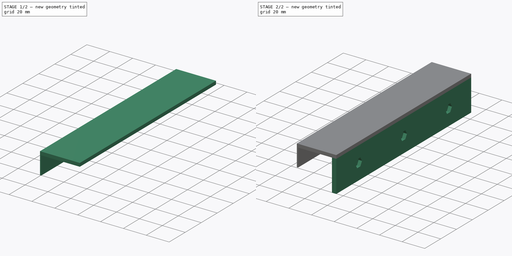
[diagram: build sequence overview — one tinted view per stage of 2, left to right]
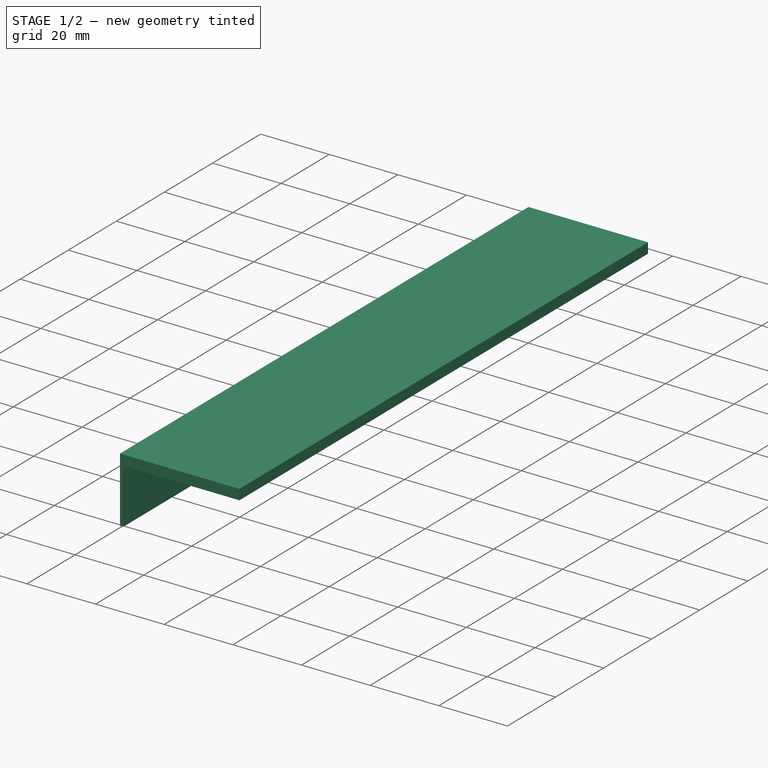
[diagram: stage 1 of 2 — iso view after this stage's code; geometry added in this stage tinted green]
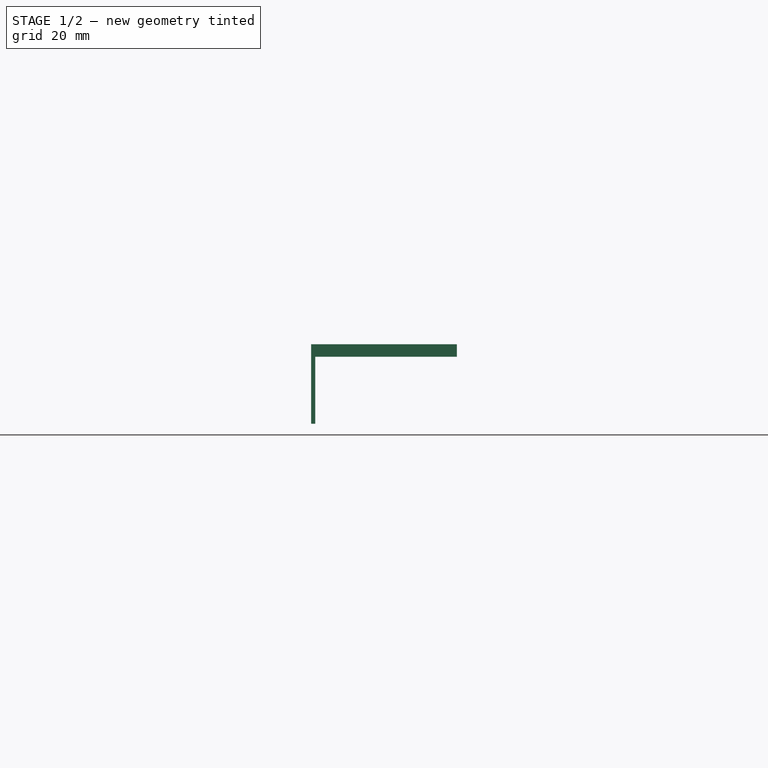
[diagram: stage 1 of 2 — front view after this stage's code; geometry added in this stage tinted green]
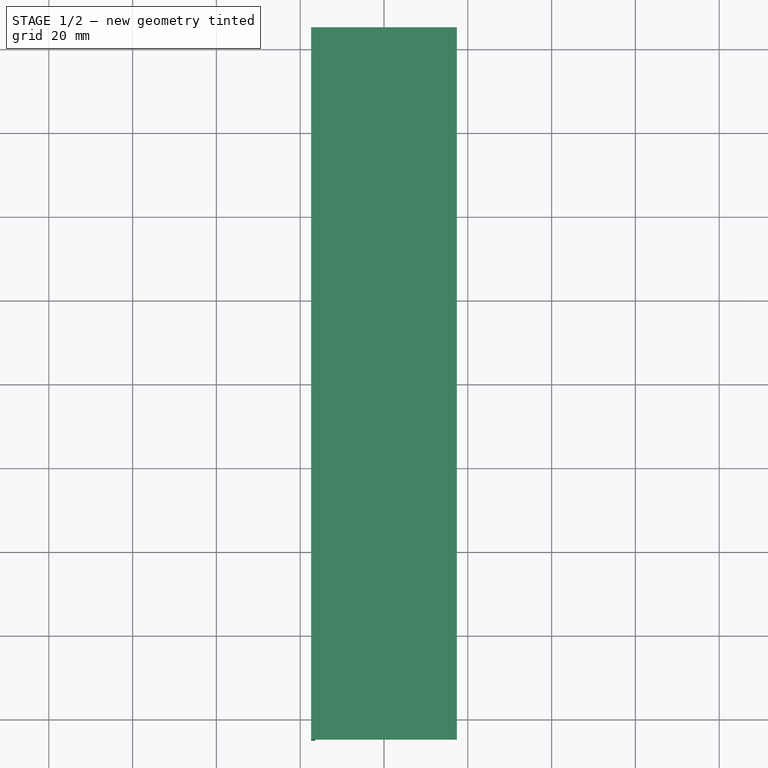
[diagram: stage 1 of 2 — top view after this stage's code; geometry added in this stage tinted green]
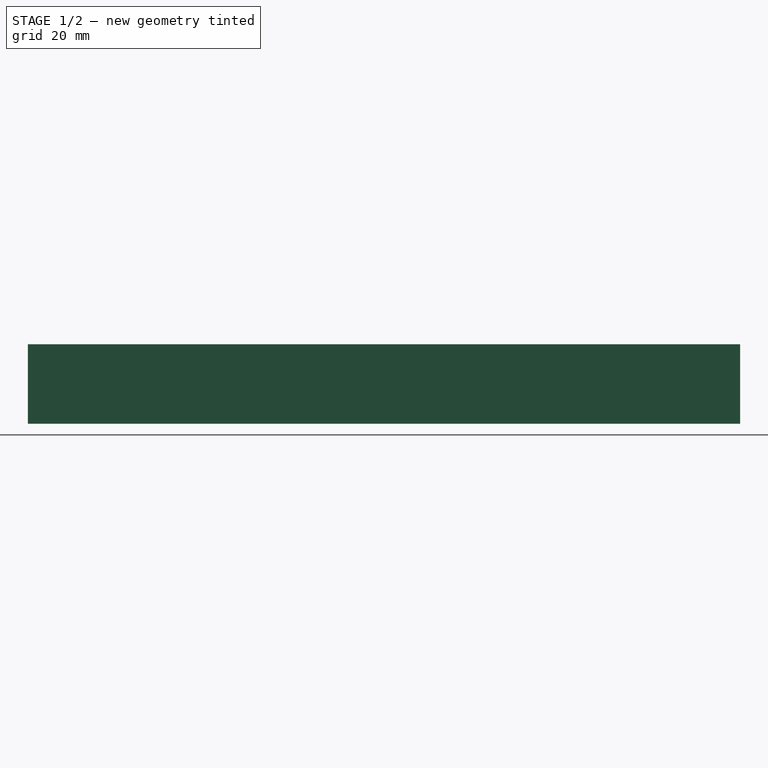
[diagram: stage 1 of 2 — right view after this stage's code; geometry added in this stage tinted green]
FCSTD DOCUMENT  (FreeCAD 0.19R24291 (Git))
Label: mount
License: All rights reserved
LicenseURL: http://en.wikipedia.org/wiki/All_rights_reserved
objects: Sketcher::SketchObject×4, PartDesign::Pad×3, PartDesign::Plane×2, Spreadsheet::Sheet×1, PartDesign::Pocket×1, PartDesign::Body×1
note: 15 computed .brp shape members not serialized (recipe doc carries the construction recipe); baked Part::Feature solids carry a one-line shape summary decoded from their .brp

FEATURE [PartDesign::Plane] DatumPlane  label="top_of_radio"
  AttachmentOffset = pos=(0,0,28) rot=(0,0,1;0rad)
  Length = 68.4391
  MapMode = 5
  Placement = pos=(0,0,28) rot=(0,0,1;0rad)
  ResizeMode = 0
  Support = -> [XY_Plane]
  Width = 188.439
  expr: .AttachmentOffset.Base.z = Spreadsheet.radio_back_overlap
FEATURE [Spreadsheet::Sheet] Spreadsheet  label="measurements"
  cells = A1=radio_depth; B1(radio_depth)=30; C1=thickness_support; D1(thickness_support)=1; A2=radio_front_overlap; B2(radio_front_overlap)=16; C2=thickness_protector; D2(thickness_protector)=0.5; A3=radio_back_overlap; B3(radio_back_overlap)=28; C3=thickness_back_support; D3(thickness_back_support)=3; A4=mount_width; B4(mount_width)=170; C4=thickness_mount_base; D4(thickness_mount_base)=3; C5=gap_protector_and_support; D5(gap_protector_and_support)=0.3; C6=nut_socket_short_width; D6(nut_socket_short_width)=7.1
FEATURE [PartDesign::Plane] DatumPlane001  label="top_of_mount_base"
  AttachmentOffset = pos=(0,0,31) rot=(0,0,1;0rad)
  Length = 68.4391
  MapMode = 5
  Placement = pos=(0,0,31) rot=(0,0,1;0rad)
  ResizeMode = 0
  Support = -> [XY_Plane]
  Width = 188.439
  expr: .AttachmentOffset.Base.z = Spreadsheet.radio_back_overlap + Spreadsheet.thickness_mount_base
FEATURE [Sketcher::SketchObject] Sketch001  label="mount_base"
  FullyConstrained = true
  MapMode = 5
  Placement = pos=(0,0,28) rot=(0,0,1;0rad)
  Support = -> [DatumPlane]
  expr: Constraints[8] = Spreadsheet.mount_width
  expr: Constraints[9] = Spreadsheet.thickness_support + Spreadsheet.radio_depth + Spreadsheet.thickness_protector + Spreadsheet.gap_protector_and_support + Spreadsheet.thickness_back_support
  sketch-geometry (4):
    g0: LineSegment StartX=-17.4 StartY=85 StartZ=0 EndX=17.4 EndY=85 EndZ=0
    g1: LineSegment StartX=17.4 StartY=85 StartZ=0 EndX=17.4 EndY=-85 EndZ=0
    g2: LineSegment StartX=17.4 StartY=-85 StartZ=0 EndX=-17.4 EndY=-85 EndZ=0
    g3: LineSegment StartX=-17.4 StartY=-85 StartZ=0 EndX=-17.4 EndY=85 EndZ=0
  constraints (10):
    c: Coincident(g0,g1)
    c: Coincident(g1,g2)
    c: Coincident(g2,g3)
    c: Coincident(g3,g0)
    c: Horizontal(g2)
    c: Vertical(g1)
    c: Symmetric(g0,g2,g-1)
    c: Symmetric(g0,g0,g-2)
    c: Distance(g1) = 170
    c: Distance(g0) = 34.8
FEATURE [Sketcher::SketchObject] Sketch  label="back_mounting"
  ExternalGeometry = -> [Sketch001]
  FullyConstrained = true
  MapMode = 5
  Placement = pos=(0,0,28) rot=(0,0,1;0rad)
  Support = -> [DatumPlane]
  expr: Constraints[16] = Spreadsheet.mount_width
  expr: Constraints[18] = Spreadsheet.thickness_back_support
  expr: Constraints[20] = Spreadsheet.gap_protector_and_support
  expr: Constraints[19] = Spreadsheet.thickness_protector
  expr: Constraints[17] = Spreadsheet.mount_width
  sketch-geometry (8):
    g0: LineSegment StartX=14.4 StartY=85 StartZ=0 EndX=17.4 EndY=85 EndZ=0
    g1: LineSegment StartX=17.4 StartY=85 StartZ=0 EndX=17.4 EndY=-85 EndZ=0
    g2: LineSegment StartX=17.4 StartY=-85 StartZ=0 EndX=14.4 EndY=-85 EndZ=0
    g3: LineSegment StartX=14.4 StartY=-85 StartZ=0 EndX=14.4 EndY=85 EndZ=0
    g4: LineSegment StartX=14.1 StartY=85 StartZ=0 EndX=13.6 EndY=85 EndZ=0
    g5: LineSegment StartX=13.6 StartY=85 StartZ=0 EndX=13.6 EndY=-85 EndZ=0
    g6: LineSegment StartX=13.6 StartY=-85 StartZ=0 EndX=14.1 EndY=-85 EndZ=0
    g7: LineSegment StartX=14.1 StartY=-85 StartZ=0 EndX=14.1 EndY=85 EndZ=0
  constraints (23):
    c: Coincident(g0,g1)
    c: Coincident(g1,g2)
    c: Coincident(g2,g3)
    c: Coincident(g3,g0)
    c: Horizontal(g0)
    c: Horizontal(g2)
    c: Vertical(g1)
    c: Vertical(g3)
    c: Coincident(g4,g5)
    c: Coincident(g5,g6)
    c: Coincident(g6,g7)
    c: Coincident(g7,g4)
    c: Horizontal(g4)
    c: Horizontal(g6)
    c: Vertical(g5)
    c: Vertical(g7)
    c: Distance(g1) = 170
    c: Distance(g5) = 170
    c: Distance(g0) = 3
    c: Distance(g4) = 0.5
    c: Distance(g2,g6) = 0.3
    c: DistanceY(g6,g2) = 0
    c: Coincident(g-4,g0)
FEATURE [Sketcher::SketchObject] Sketch002  label="front_mounting"
  ExternalGeometry = -> [Sketch001]
  FullyConstrained = true
  MapMode = 5
  Placement = pos=(0,0,28) rot=(0,0,1;0rad)
  Support = -> [DatumPlane]
  expr: Constraints[9] = Spreadsheet.thickness_support
  sketch-geometry (4):
    g0: LineSegment StartX=-17.4 StartY=85 StartZ=0 EndX=-16.4 EndY=85 EndZ=0
    g1: LineSegment StartX=-16.4 StartY=85 StartZ=0 EndX=-16.4 EndY=-85 EndZ=0
    g2: LineSegment StartX=-16.4 StartY=-85 StartZ=0 EndX=-17.4 EndY=-85 EndZ=0
    g3: LineSegment StartX=-17.4 StartY=-85 StartZ=0 EndX=-17.4 EndY=85 EndZ=0
  constraints (10):
    c: Coincident(g0,g1)
    c: Coincident(g1,g2)
    c: Coincident(g2,g3)
    c: Coincident(g3,g0)
    c: Horizontal(g0)
    c: Horizontal(g2)
    c: Vertical(g1)
    c: Coincident(g0,g-3)
    c: Coincident(g2,g-4)
    c: Distance(g2) = 1
FEATURE [PartDesign::Pad] Pad  label="mount_base_pad"
  Direction = (1,1,1)
  Length = 3
  Length2 = 100
  Placement = pos=(0,0,28) rot=(0,0,1;0rad)
  Profile = -> Sketch001
  Type = 0
  expr: Length = Spreadsheet.thickness_mount_base
FEATURE [PartDesign::Pad] Pad001  label="front_mounting_pad"
  BaseFeature = -> Pad
  Direction = (1,1,1)
  Length = 16
  Length2 = 100
  Placement = pos=(0,0,28) rot=(0,0,1;0rad)
  Profile = -> Sketch002
  Reversed = true
  Type = 0
  expr: Length = Spreadsheet.radio_front_overlap
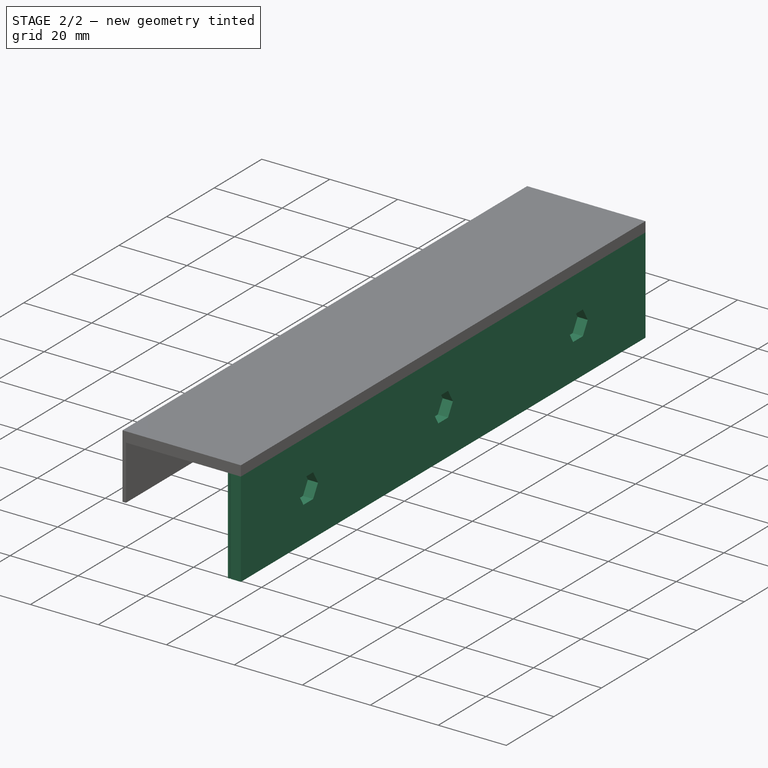
[diagram: stage 2 of 2 — iso view after this stage's code; geometry added in this stage tinted green]
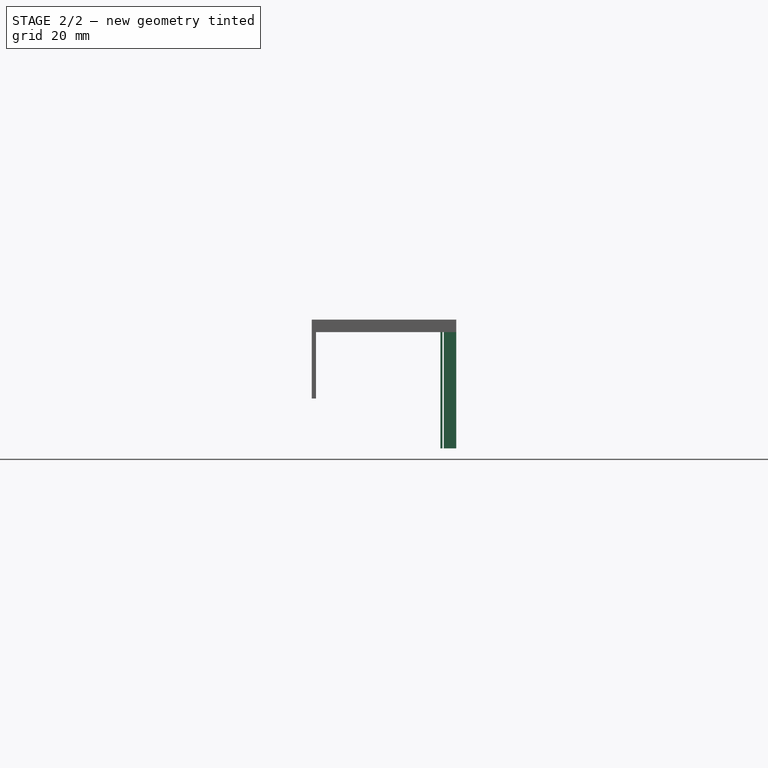
[diagram: stage 2 of 2 — front view after this stage's code; geometry added in this stage tinted green]
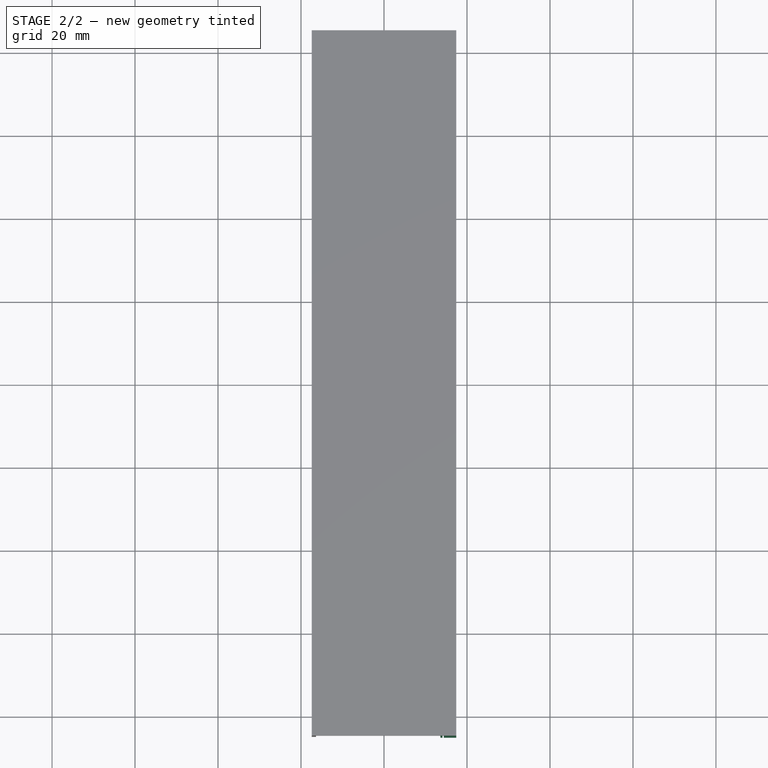
[diagram: stage 2 of 2 — top view after this stage's code; geometry added in this stage tinted green]
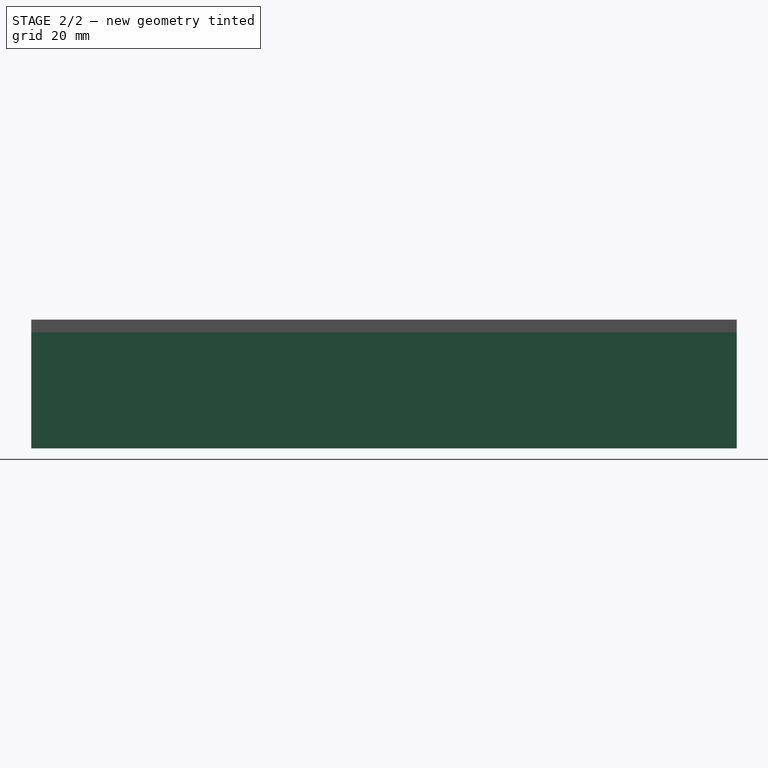
[diagram: stage 2 of 2 — right view after this stage's code; geometry added in this stage tinted green]
FEATURE [PartDesign::Pad] Pad002  label="back_mounting_pad"
  BaseFeature = -> Pad001
  Direction = (1,1,1)
  Length = 28
  Length2 = 100
  Placement = pos=(0,0,28) rot=(0,0,1;0rad)
  Profile = -> Sketch
  Reversed = true
  Type = 0
  expr: Length = Spreadsheet.radio_back_overlap
FEATURE [Sketcher::SketchObject] Sketch003  label="nut_holes"
  FullyConstrained = true
  MapMode = 5
  Placement = pos=(17.4,0,28) rot=(0.57735,0.57735,0.57735;2.0944rad)
  Support = -> [Pad002]
  expr: Constraints[64] = Spreadsheet.mount_width / 3
  expr: Constraints[60] = Spreadsheet.nut_socket_short_width
  expr: Constraints[58] = Spreadsheet.nut_socket_short_width
  expr: Constraints[59] = Spreadsheet.nut_socket_short_width
  expr: Constraints[53] = Spreadsheet.radio_back_overlap / 2
  sketch-geometry (22):
    g0: LineSegment StartX=-54.6171 StartY=-17.55 StartZ=0 EndX=-52.5675 EndY=-14 EndZ=0
    g1: LineSegment StartX=-52.5675 StartY=-14 StartZ=0 EndX=-54.6171 EndY=-10.45 EndZ=0
    g2: LineSegment StartX=-54.6171 StartY=-10.45 StartZ=0 EndX=-58.7163 EndY=-10.45 EndZ=0
    g3: LineSegment StartX=-58.7163 StartY=-10.45 StartZ=0 EndX=-60.7659 EndY=-14 EndZ=0
    g4: LineSegment StartX=-60.7659 StartY=-14 StartZ=0 EndX=-58.7163 EndY=-17.55 EndZ=0
    g5: LineSegment StartX=-58.7163 StartY=-17.55 StartZ=0 EndX=-54.6171 EndY=-17.55 EndZ=0
    g6: Circle CenterX=-56.6667 CenterY=-14 CenterZ=0 NormalX=0 NormalY=0 NormalZ=1 AngleXU=0 Radius=4.09919
    g7: LineSegment StartX=2.04959 StartY=-17.55 StartZ=0 EndX=4.09919 EndY=-14 EndZ=0
    g8: LineSegment StartX=4.09919 StartY=-14 StartZ=0 EndX=2.04959 EndY=-10.45 EndZ=0
    g9: LineSegment StartX=2.04959 StartY=-10.45 StartZ=0 EndX=-2.04959 EndY=-10.45 EndZ=0
    g10: LineSegment StartX=-2.04959 StartY=-10.45 StartZ=0 EndX=-4.09919 EndY=-14 EndZ=0
    g11: LineSegment StartX=-4.09919 StartY=-14 StartZ=0 EndX=-2.04959 EndY=-17.55 EndZ=0
    g12: LineSegment StartX=-2.04959 StartY=-17.55 StartZ=0 EndX=2.04959 EndY=-17.55 EndZ=0
    g13: Circle CenterX=0 CenterY=-14 CenterZ=0 NormalX=0 NormalY=0 NormalZ=1 AngleXU=0 Radius=4.09919
    g14: LineSegment StartX=54.6171 StartY=-17.55 StartZ=0 EndX=58.7163 EndY=-17.55 EndZ=0
    g15: LineSegment StartX=58.7163 StartY=-17.55 StartZ=0 EndX=60.7659 EndY=-14 EndZ=0
    g16: LineSegment StartX=60.7659 StartY=-14 StartZ=0 EndX=58.7163 EndY=-10.45 EndZ=0
    g17: LineSegment StartX=58.7163 StartY=-10.45 StartZ=0 EndX=54.6171 EndY=-10.45 EndZ=0
    g18: LineSegment StartX=54.6171 StartY=-10.45 StartZ=0 EndX=52.5675 EndY=-14 EndZ=0
    g19: LineSegment StartX=52.5675 StartY=-14 StartZ=0 EndX=54.6171 EndY=-17.55 EndZ=0
    g20: Circle CenterX=56.6667 CenterY=-14 CenterZ=0 NormalX=0 NormalY=0 NormalZ=1 AngleXU=0 Radius=4.09919
    g21: LineSegment StartX=-100 StartY=-14 StartZ=0 EndX=100 EndY=-14 EndZ=0
  constraints (53):
    c: Coincident(g0,g1)
    c: Coincident(g1,g2)
    c: Coincident(g2,g3)
    c: Coincident(g3,g4)
    c: Coincident(g4,g5)
    c: Coincident(g5,g0)
    c: Equal(g0, g1-g5) x5
    c: PointOnObject(g0,g6)
    c: PointOnObject(g1,g6)
    c: PointOnObject(g2,g6)
    c: PointOnObject(g3,g6)
    c: PointOnObject(g4,g6)
    c: PointOnObject(g5,g6)
    c: Coincident(g7,g8)
    c: Coincident(g8,g9)
    c: Coincident(g9,g10)
    c: Coincident(g10,g11)
    c: Coincident(g11,g12)
    c: Coincident(g12,g7)
    c: Equal(g7, g8-g12) x5
    c: PointOnObject(g7,g13)
    c: PointOnObject(g8,g13)
    c: PointOnObject(g9,g13)
    c: PointOnObject(g10,g13)
    c: PointOnObject(g11,g13)
    c: PointOnObject(g12,g13)
    c: Coincident(g14,g15)
    c: Coincident(g15,g16)
    c: Coincident(g16,g17)
    c: Coincident(g17,g18)
    c: Coincident(g18,g19)
    c: Coincident(g19,g14)
    c: Equal(g14, g15-g19) x5
    c: PointOnObject(g14,g20)
    c: PointOnObject(g15,g20)
    c: PointOnObject(g16,g20)
    c: PointOnObject(g17,g20)
    c: PointOnObject(g18,g20)
    c: PointOnObject(g19,g20)
    c: PointOnObject(g13,g-2)
    c: Symmetric(g20,g6,g-2)
    c: DistanceY(g21,g-1) = 14
    c: Symmetric(g21,g21,g-2)
    c: Distance(g21) = 200
    c: PointOnObject(g20,g21)
    c: PointOnObject(g13,g21)
    c: Distance(g2,g4) = 7.1
    c: Distance(g11,g9) = 7.1
    c: Distance(g17,g14) = 7.1
    c: Horizontal(g5)
    c: Horizontal(g12)
    c: Horizontal(g14)
    c: DistanceX(g-1,g20) = 56.6667
FEATURE [PartDesign::Pocket] Pocket  label="nut_holes_pocket"
  BaseFeature = -> Pad002
  Length = 5
  Length2 = 100
  Placement = pos=(0,0,28) rot=(0,0,1;0rad)
  Profile = -> Sketch003
  Type = 2
FEATURE [PartDesign::Body] Body
  Group = -> [DatumPlane,DatumPlane001,Sketch,Sketch001,Sketch002,Pad,Pad001,Pad002,Sketch003,Pocket]
  Origin = -> Origin
  Tip = -> Pocket
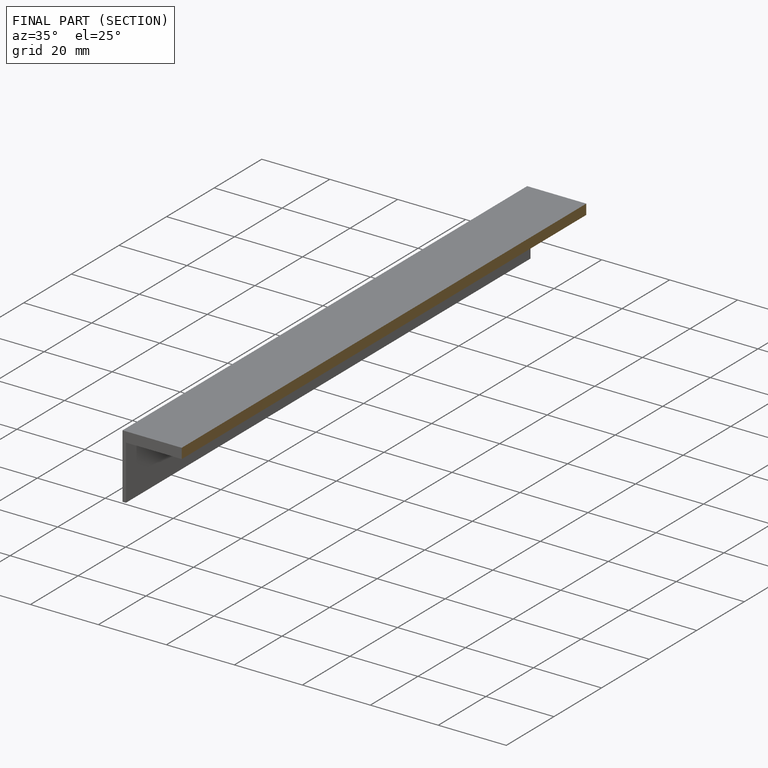
[diagram: finished part — half-section view (interior)]
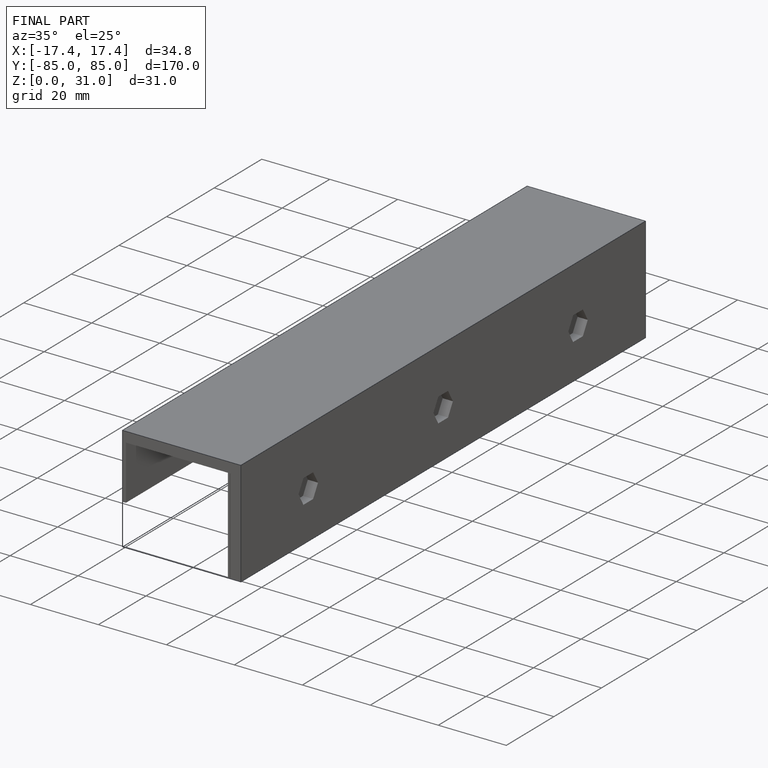
[diagram: finished part — iso view with bounding-box wireframe]
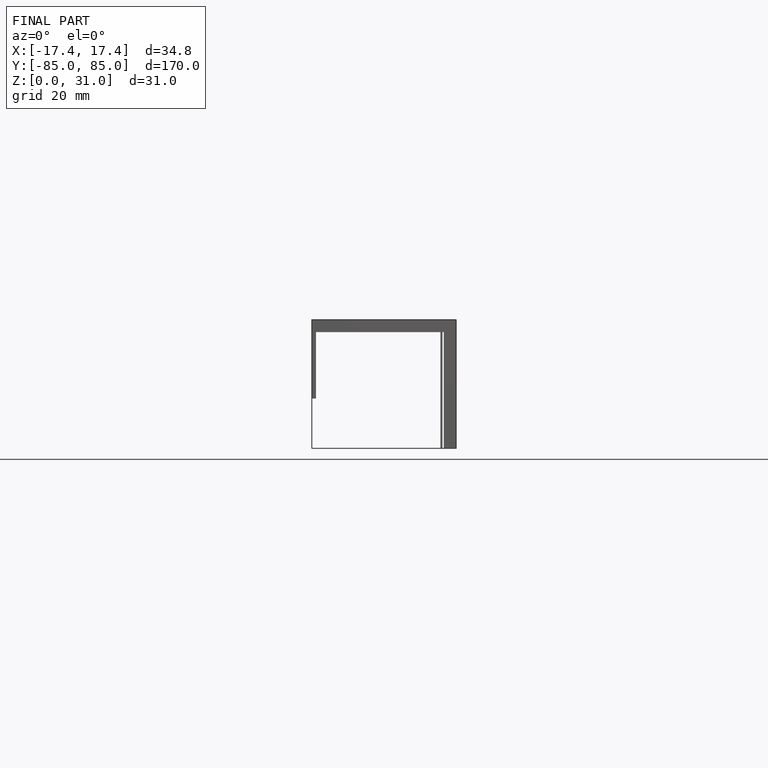
[diagram: finished part — front view with bounding-box wireframe]
